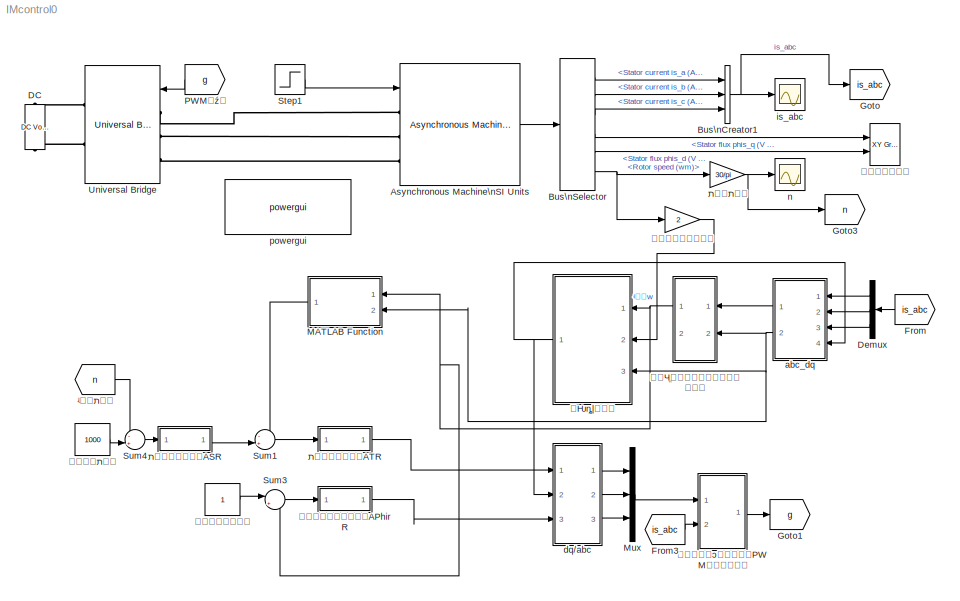
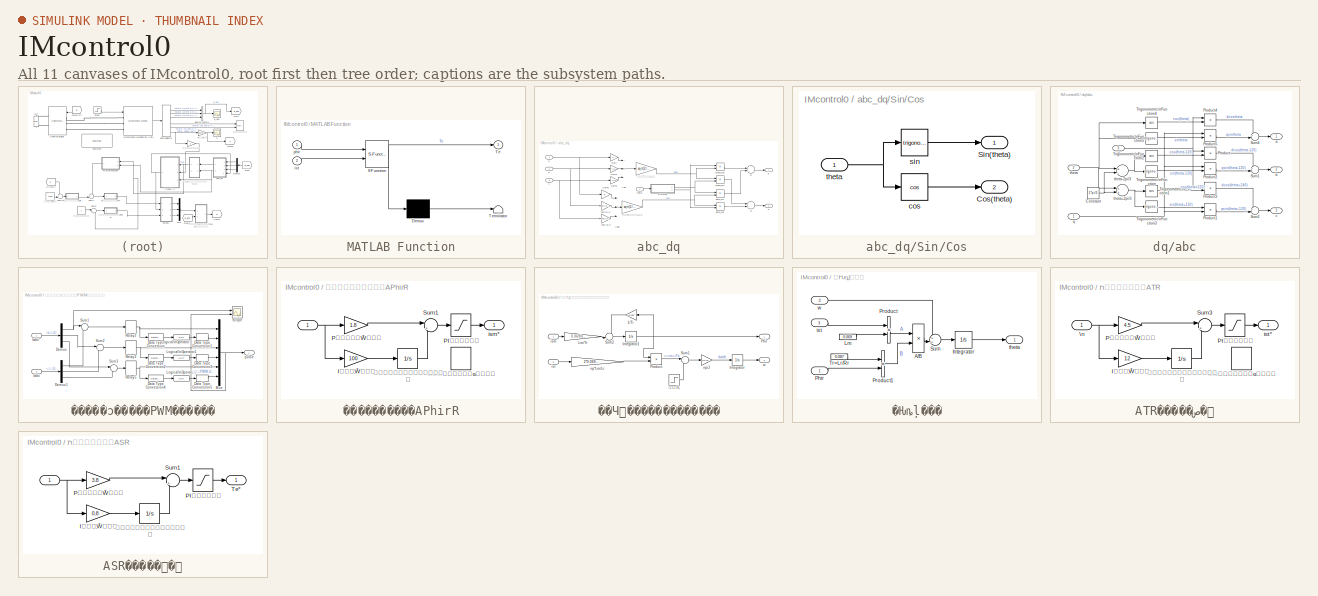
[diagram: thumbnail index - all 11 canvases of the model, root first then tree order]
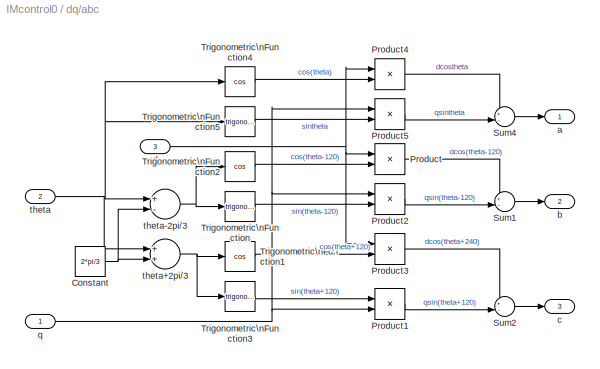
MODEL IMcontrol0
KIND model
BLOCK [Reference] Asynchronous Machine\nSI Units  REF=powerlib/Machines/Asynchronous Machine\nSI Units
  Cage1 = [0.4155 0.002066]
  Cage2 = [0.4168 0.0003495]
  InitialConditions = [1 0 0 0 0 0 0 0]
  IterativeDiscreteModel = Trapezoidal non iterative
  IterativeModel = Trapezoidal non iterative
  Lm = 0.069
  LoadFlowParameters = 1492000
  MeasurementBus = off
  Mechanical = [0.19 0 2]
  MechanicalLoad = Torque Tm
  NominalParameters = [2200 380 50]
  Pmec = 1.492e+006
  PolePairs = 2
  Ports = [1, 1, 0, 0, 0, 3]
  PresetModel = No
  ReferenceFrame = Stationary
  Rotor = [0.816 0.002]
  RotorType = Squirrel-cage
  SID = 46
  Saturation = [14.03593122, 27.81365428, 53.79336849, 72.68890987, 97.98006896, 148.6815601, 215.7428561, 302.9841135, 428.7778367 ; 230, 322, 414, 460, 506, 552, 598, 644, 690]
  ShowDetailedParameters = on
  SimulateSaturation = off
  SourceBlock = powerlib/Machines/Asynchronous Machine\nSI Units
  SourceProductBaseCode = PS
  SourceProductName = Simscape Power Systems
  SourceType = Asynchronous Machine
  Stator = [0.435 0.002]
  TsBlock = -1
  TsPowergui = 0
  Units = SI
BLOCK [BusCreator] Bus\nCreator1
  DisplayOption = bar
  InheritFromInputs = on
  Inputs = 3
  Ports = [3, 1]
  SID = 204
BLOCK [BusSelector] Bus\nSelector
  OutputAsBus = off
  OutputSignals = Stator measurements.Stator current is_a (A),Stator measurements.Stator current is_b (A),Stator measurements.Stator current is_c (A),Stator measurements.Stator flux phis_q (V s),Stator measurements.Stator flux phis_d (V s),Mechanical.Rotor speed (wm)
  Ports = [1, 6]
  SID = 205
BLOCK [Reference] DC  REF=powerlib/Electrical\nSources/DC Voltage Source
  Amplitude = 510
  Measurements = None
  Ports = [0, 0, 0, 0, 0, 1, 1]
  SID = 212
  SourceBlock = powerlib/Electrical\nSources/DC Voltage Source
  SourceProductBaseCode = PS
  SourceProductName = Simscape Power Systems
  SourceType = DC Voltage Source
BLOCK [Demux] Demux
  DisplayOption = bar
  Outputs = 3
  Ports = [1, 3]
  SID = 217
BLOCK [From] From
  GotoTag = is_abc
  SID = 218
BLOCK [From] From3
  GotoTag = is_abc
  SID = 154
BLOCK [Goto] Goto
  GotoTag = is_abc
  SID = 206
BLOCK [Goto] Goto1
  GotoTag = g
  SID = 155
BLOCK [Goto] Goto3
  GotoTag = n
  SID = 207
BLOCK [SubSystem] MATLAB Function
  ErrorFcn = Stateflow.Translate.translate
  PermitHierarchicalResolution = ExplicitOnly
  Ports = [2, 1]
  RequestExecContextInheritance = off
  SFBlockType = MATLAB Function
  SID = 82
  TreatAsAtomicUnit = on
  Variant = off
BLOCK [Demux] MATLAB Function/ Demux 
  Outputs = 1
  Ports = [1, 1]
  SID = 82::20
BLOCK [S-Function] MATLAB Function/ SFunction 
  EnableBusSupport = on
  FunctionName = sf_sfun
  PortCounts = [2 2]
  Ports = [2, 2]
  SFcnIsStateOwnerBlock = off
  SFunctionDeploymentMode = off
  SID = 82::19
  Tag = Stateflow S-Function IMcontrol0 2
BLOCK [Terminator] MATLAB Function/ Terminator 
  SID = 82::21
BLOCK [Outport] MATLAB Function/Te
  IconDisplay = Port number
  SID = 82::5
BLOCK [Inport] MATLAB Function/ist
  IconDisplay = Port number
  Port = 2
  SID = 82::22
BLOCK [Inport] MATLAB Function/phir
  IconDisplay = Port number
  SID = 82::1
BLOCK [Mux] Mux
  DisplayOption = bar
  Inputs = 3
  Ports = [3, 1]
  SID = 156
BLOCK [From] PWMÐÅºÅ
  GotoTag = g
  SID = 213
BLOCK [Step] Step1
  After = 55
  SID = 60
  SampleTime = 0
  Time = 0.6
BLOCK [Sum] Sum1
  IconShape = round
  InputSameDT = off
  Inputs = -+|
  OutDataTypeStr = Inherit: Inherit via internal rule
  Ports = [2, 1]
  SID = 122
  SaturateOnIntegerOverflow = off
BLOCK [Sum] Sum3
  IconShape = round
  InputSameDT = off
  Inputs = |+-
  OutDataTypeStr = Inherit: Inherit via internal rule
  Ports = [2, 1]
  SID = 123
  SaturateOnIntegerOverflow = off
BLOCK [Sum] Sum4
  IconShape = round
  InputSameDT = off
  Inputs = -+|
  OutDataTypeStr = Inherit: Inherit via internal rule
  Ports = [2, 1]
  SID = 124
  SaturateOnIntegerOverflow = off
BLOCK [Reference] Universal Bridge  REF=powerlib/Power\nElectronics/Universal Bridge
  Arms = 3
  Device = IGBT / Diodes
  ForwardVoltage = 0
  ForwardVoltages = [  0  0  ]
  GTOparameters = [ 10e-6 , 20e-6 ]
  IGBTparameters = [ 1e-6 , 2e-6 ]
  Lon = 0
  Measurements = None
  Measurements_2 = None
  Ports = [1, 0, 0, 0, 0, 3, 2]
  Ron = 1e-3
  SID = 214
  SnubberCapacitance = inf
  SnubberResistance = 1e5
  SourceBlock = powerlib/Power\nElectronics/Universal Bridge
  SourceProductBaseCode = PS
  SourceProductName = Simscape Power Systems
  SourceType = Universal Bridge
  converterType = Rectifier
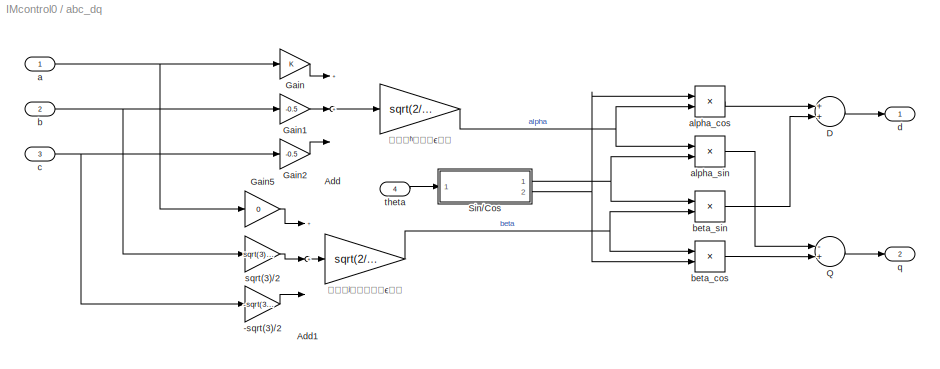
BLOCK [SubSystem] abc_dq
  Ports = [4, 2]
  RequestExecContextInheritance = off
  SID = 17
  Variant = off
BLOCK [Gain] abc_dq/-sqrt(3)//2
  Gain = -sqrt(3)/2
  OutDataTypeStr = Inherit: Inherit via internal rule
  ParamDataTypeStr = Inherit: Inherit via internal rule
  SID = 22
  SaturateOnIntegerOverflow = off
BLOCK [Sum] abc_dq/Add
  InputSameDT = off
  Inputs = 3
  OutDataTypeStr = Inherit: Inherit via internal rule
  Ports = [3, 1]
  SID = 23
  SaturateOnIntegerOverflow = off
BLOCK [Sum] abc_dq/Add1
  InputSameDT = off
  Inputs = 3
  OutDataTypeStr = Inherit: Inherit via internal rule
  Ports = [3, 1]
  SID = 24
  SaturateOnIntegerOverflow = off
BLOCK [Sum] abc_dq/D
  InputSameDT = off
  OutDataTypeStr = Inherit: Inherit via internal rule
  Ports = [2, 1]
  SID = 25
  SaturateOnIntegerOverflow = off
BLOCK [Gain] abc_dq/Gain
  OutDataTypeStr = Inherit: Inherit via internal rule
  ParamDataTypeStr = Inherit: Inherit via internal rule
  SID = 26
  SaturateOnIntegerOverflow = off
BLOCK [Gain] abc_dq/Gain1
  Gain = -0.5
  OutDataTypeStr = Inherit: Inherit via internal rule
  ParamDataTypeStr = Inherit: Inherit via internal rule
  SID = 27
  SaturateOnIntegerOverflow = off
BLOCK [Gain] abc_dq/Gain2
  Gain = -0.5
  OutDataTypeStr = Inherit: Inherit via internal rule
  ParamDataTypeStr = Inherit: Inherit via internal rule
  SID = 28
  SaturateOnIntegerOverflow = off
BLOCK [Gain] abc_dq/Gain5
  Gain = 0
  OutDataTypeStr = Inherit: Inherit via internal rule
  ParamDataTypeStr = Inherit: Inherit via internal rule
  SID = 29
  SaturateOnIntegerOverflow = off
BLOCK [Sum] abc_dq/Q
  InputSameDT = off
  Inputs = -+
  OutDataTypeStr = Inherit: Inherit via internal rule
  Ports = [2, 1]
  SID = 30
  SaturateOnIntegerOverflow = off
BLOCK [SubSystem] abc_dq/Sin//Cos
  Ports = [1, 2]
  RequestExecContextInheritance = off
  SID = 31
  Variant = off
BLOCK [Outport] abc_dq/Sin//Cos/Cos(theta)
  IconDisplay = Port number
  Port = 2
  SID = 36
BLOCK [Outport] abc_dq/Sin//Cos/Sin(theta)
  IconDisplay = Port number
  SID = 35
BLOCK [Trigonometry] abc_dq/Sin//Cos/cos
  Operator = cos
  Ports = [1, 1]
  SID = 33
BLOCK [Trigonometry] abc_dq/Sin//Cos/sin
  Ports = [1, 1]
  SID = 34
BLOCK [Inport] abc_dq/Sin//Cos/theta
  IconDisplay = Port number
  SID = 32
BLOCK [Inport] abc_dq/a
  IconDisplay = Port number
  SID = 18
BLOCK [Product] abc_dq/alpha_cos
  InputSameDT = off
  OutDataTypeStr = Inherit: Inherit via internal rule
  Ports = [2, 1]
  RndMeth = Floor
  SID = 37
  SaturateOnIntegerOverflow = off
BLOCK [Product] abc_dq/alpha_sin
  InputSameDT = off
  OutDataTypeStr = Inherit: Inherit via internal rule
  Ports = [2, 1]
  RndMeth = Floor
  SID = 38
  SaturateOnIntegerOverflow = off
BLOCK [Inport] abc_dq/b
  IconDisplay = Port number
  Port = 2
  SID = 19
BLOCK [Product] abc_dq/beta_cos
  InputSameDT = off
  OutDataTypeStr = Inherit: Inherit via internal rule
  Ports = [2, 1]
  RndMeth = Floor
  SID = 39
  SaturateOnIntegerOverflow = off
BLOCK [Product] abc_dq/beta_sin
  InputSameDT = off
  OutDataTypeStr = Inherit: Inherit via internal rule
  Ports = [2, 1]
  RndMeth = Floor
  SID = 40
  SaturateOnIntegerOverflow = off
BLOCK [Inport] abc_dq/c
  IconDisplay = Port number
  Port = 3
  SID = 20
BLOCK [Outport] abc_dq/d
  IconDisplay = Port number
  SID = 44
BLOCK [Outport] abc_dq/q
  IconDisplay = Port number
  Port = 2
  SID = 45
BLOCK [Gain] abc_dq/sqrt(3)//2
  Gain = sqrt(3)/2
  OutDataTypeStr = Inherit: Inherit via internal rule
  ParamDataTypeStr = Inherit: Inherit via internal rule
  SID = 41
  SaturateOnIntegerOverflow = off
BLOCK [Inport] abc_dq/theta
  IconDisplay = Port number
  Port = 4
  SID = 21
BLOCK [Gain] abc_dq/功率保持系数
  Gain = sqrt(2/3)
  OutDataTypeStr = Inherit: Inherit via internal rule
  ParamDataTypeStr = Inherit: Inherit via internal rule
  SID = 43
  SaturateOnIntegerOverflow = off
BLOCK [Gain] abc_dq/功率不变保持系数
  Gain = sqrt(2/3)
  OutDataTypeStr = Inherit: Inherit via internal rule
  ParamDataTypeStr = Inherit: Inherit via internal rule
  SID = 42
  SaturateOnIntegerOverflow = off
BLOCK [SubSystem] dq//abc
  Ports = [3, 3]
  RequestExecContextInheritance = off
  SID = 157
  Variant = off
BLOCK [Constant] dq//abc/Constant
  SID = 161
  Value = 2*pi/3
BLOCK [Product] dq//abc/Product
  InputSameDT = off
  OutDataTypeStr = Inherit: Inherit via internal rule
  Ports = [2, 1]
  RndMeth = Floor
  SID = 162
  SaturateOnIntegerOverflow = off
BLOCK [Product] dq//abc/Product1
  InputSameDT = off
  OutDataTypeStr = Inherit: Inherit via internal rule
  Ports = [2, 1]
  RndMeth = Floor
  SID = 163
  SaturateOnIntegerOverflow = off
BLOCK [Product] dq//abc/Product2
  InputSameDT = off
  OutDataTypeStr = Inherit: Inherit via internal rule
  Ports = [2, 1]
  RndMeth = Floor
  SID = 164
  SaturateOnIntegerOverflow = off
BLOCK [Product] dq//abc/Product3
  InputSameDT = off
  OutDataTypeStr = Inherit: Inherit via internal rule
  Ports = [2, 1]
  RndMeth = Floor
  SID = 165
  SaturateOnIntegerOverflow = off
BLOCK [Product] dq//abc/Product4
  InputSameDT = off
  OutDataTypeStr = Inherit: Inherit via internal rule
  Ports = [2, 1]
  RndMeth = Floor
  SID = 166
  SaturateOnIntegerOverflow = off
BLOCK [Product] dq//abc/Product5
  InputSameDT = off
  OutDataTypeStr = Inherit: Inherit via internal rule
  Ports = [2, 1]
  RndMeth = Floor
  SID = 167
  SaturateOnIntegerOverflow = off
BLOCK [Sum] dq//abc/Sum1
  IconShape = round
  InputSameDT = off
  Inputs = +-|
  OutDataTypeStr = Inherit: Inherit via internal rule
  Ports = [2, 1]
  SID = 168
  SaturateOnIntegerOverflow = off
BLOCK [Sum] dq//abc/Sum2
  IconShape = round
  InputSameDT = off
  Inputs = +-|
  OutDataTypeStr = Inherit: Inherit via internal rule
  Ports = [2, 1]
  SID = 169
  SaturateOnIntegerOverflow = off
BLOCK [Sum] dq//abc/Sum4
  IconShape = round
  InputSameDT = off
  Inputs = +-|
  OutDataTypeStr = Inherit: Inherit via internal rule
  Ports = [2, 1]
  SID = 170
  SaturateOnIntegerOverflow = off
BLOCK [Trigonometry] dq//abc/Trigonometric\nFunction
  Ports = [1, 1]
  SID = 171
BLOCK [Trigonometry] dq//abc/Trigonometric\nFunction1
  Operator = cos
  Ports = [1, 1]
  SID = 172
BLOCK [Trigonometry] dq//abc/Trigonometric\nFunction2
  Operator = cos
  Ports = [1, 1]
  SID = 173
BLOCK [Trigonometry] dq//abc/Trigonometric\nFunction3
  Ports = [1, 1]
  SID = 174
BLOCK [Trigonometry] dq//abc/Trigonometric\nFunction4
  Operator = cos
  Ports = [1, 1]
  SID = 175
BLOCK [Trigonometry] dq//abc/Trigonometric\nFunction5
  Ports = [1, 1]
  SID = 176
BLOCK [Outport] dq//abc/a
  IconDisplay = Port number
  SID = 179
BLOCK [Outport] dq//abc/b
  IconDisplay = Port number
  Port = 2
  SID = 180
BLOCK [Outport] dq//abc/c
  IconDisplay = Port number
  Port = 3
  SID = 181
BLOCK [Inport] dq//abc/d
  IconDisplay = Port number
  Port = 3
  SID = 160
BLOCK [Inport] dq//abc/q
  IconDisplay = Port number
  SID = 158
BLOCK [Inport] dq//abc/theta
  IconDisplay = Port number
  Port = 2
  SID = 159
BLOCK [Sum] dq//abc/theta+2pi//3
  InputSameDT = off
  OutDataTypeStr = Inherit: Inherit via internal rule
  Ports = [2, 1]
  SID = 177
  SaturateOnIntegerOverflow = off
BLOCK [Sum] dq//abc/theta-2pi//3
  InputSameDT = off
  Inputs = +-
  OutDataTypeStr = Inherit: Inherit via internal rule
  Ports = [2, 1]
  SID = 178
  SaturateOnIntegerOverflow = off
BLOCK [Scope] is_abc
  NumInputPorts = 1
  Ports = [1]
  SID = 208
  ScopeSpecificationString = Simulink.scopes.TimeScopeBlockCfg('CurrentConfiguration', extmgr.ConfigurationSet(extmgr.Configuration('Core','General UI',true),extmgr.Configuration('Core','Source UI',true),extmgr.Configuration('Sources','WiredSimulink',true,'DataLoggingVariableName','ScopeData1'),extmgr.Configuration('Visuals','Time Domain',true,'SerializedDisplays',{struct('MinYLimReal','-77.19583','MaxYLimReal','77.10857','YL...<+1513ch>
BLOCK [Scope] n
  NumInputPorts = 1
  Ports = [1]
  SID = 209
  ScopeSpecificationString = Simulink.scopes.TimeScopeBlockCfg('CurrentConfiguration', extmgr.ConfigurationSet(extmgr.Configuration('Core','General UI',true),extmgr.Configuration('Core','Source UI',true),extmgr.Configuration('Sources','WiredSimulink',true),extmgr.Configuration('Visuals','Time Domain',true,'SerializedDisplays',{struct('MinYLimReal','-127.89091','MaxYLimReal','1151.0182','YLabelReal','','MinYLimMag',' 0.00000',...<+1413ch>
BLOCK [Reference] powergui  REF=powerlib/powergui
  CurrentSourceSwitches = off
  DisableRonSwitches = off
  DisableSnubberDevices = off
  DisableVfSwitches = off
  DisplayEquations = off
  DisplayStyle = 1
  EnableUseOfTLC = off
  ErrMax = 1e-4
  ExternalGateDelay = off
  Frange = [0:2:500]
  FreqAxis = off
  FunctionMessages = off
  HookPort = off
  Interpol = off
  Iterations = 50
  MaxFrequency = 1000
  Pbase = 100e6
  Ports = []
  ResistiveCurrentMeasurement = off
  RestoreLinks = warning
  RmsSteady = 1
  SID = 216
  SPID = on
  SampleTime = 0.00001
  ShowGrid = off
  SolverType = Tustin/Backward Euler (TBE)
  SourceBlock = powerlib/powergui
  SourceProductBaseCode = PS
  SourceProductName = Simscape Power Systems
  SourceType = PSB option menu block
  StartTime = 0.0
  SwTol = 0
  Ts = 100
  UnitsV = kV
  UnitsW = MW
  Xlog = on
  Ylog = off
  ZoomFFT = on
  buscounter = 0
  cycles = 1
  display = off
  echomessages = off
  frequency = 50
  frequencyindice = 50
  frequencyindicesteady = 1
  fundamental = 60
  methode = off
  save = off
  structure = 0
  variable = ZData
  x0status = zero
BLOCK [SubSystem] 磁链调节器APhirR
  Ports = [1, 1]
  RequestExecContextInheritance = off
  SID = 126
  Variant = off
BLOCK [Inport] 磁链调节器APhirR/ 
  IconDisplay = Port number
  SID = 127
BLOCK [Gain] 磁链调节器APhirR/I积分放大倍数
  Gain = 100
  OutDataTypeStr = Inherit: Inherit via internal rule
  ParamDataTypeStr = Inherit: Inherit via internal rule
  SID = 128
  SaturateOnIntegerOverflow = off
BLOCK [Saturate] 磁链调节器APhirR/PI输出限幅
  InputPortMap = u0
  LowerLimit = -13
  Ports = [1, 1]
  SID = 129
  UpperLimit = 13
BLOCK [Gain] 磁链调节器APhirR/P比例放大倍数
  Gain = 1.8
  OutDataTypeStr = Inherit: Inherit via internal rule
  ParamDataTypeStr = Inherit: Inherit via internal rule
  SID = 130
  SaturateOnIntegerOverflow = off
BLOCK [Sum] 磁链调节器APhirR/Sum1
  IconShape = round
  InputSameDT = off
  Inputs = |++
  OutDataTypeStr = Inherit: Inherit via internal rule
  Ports = [2, 1]
  SID = 131
  SaturateOnIntegerOverflow = off
BLOCK [Outport] 磁链调节器APhirR/ism*
  IconDisplay = Port number
  SID = 134
BLOCK [DiscreteIntegrator] 磁链调节器APhirR/带限幅的离散积分
  ICPrevOutput = DiscIntNeverNeededParam
  ICPrevScaledInput = DiscIntNeverNeededParam
  Ports = [1, 1]
  SID = 132
  SampleTime = 2e-5
BLOCK [Integrator] 磁链调节器APhirR/带限幅的连续积分
  LimitOutput = on
  LowerSaturationLimit = -15
  Ports = [1, 1]
  SID = 133
  UpperSaturationLimit = 15
BLOCK [Reference] 磁链观测  REF=simulink/Sinks/XY Graph
  Ports = [2]
  SID = 210
  SourceBlock = simulink/Sinks/XY Graph
  SourceProductBaseCode = SL
  SourceProductName = Simulink
  SourceType = XY scope.
  st = -1
  xmax = 1
  xmin = -1
  ymax = 1
  ymin = -1
BLOCK [SubSystem] 等效直流电机参数计算
  Ports = [2, 2]
  RequestExecContextInheritance = off
  SID = 115
  Variant = off
BLOCK [Gain] 等效直流电机参数计算/1//Tr
  Gain = 1/0.087
  OutDataTypeStr = Inherit: Inherit via internal rule
  ParamDataTypeStr = Inherit: Inherit via internal rule
  SID = 87
  SaturateOnIntegerOverflow = off
BLOCK [Integrator] 等效直流电机参数计算/Integrator
  Ports = [1, 1]
  SID = 88
BLOCK [Integrator] 等效直流电机参数计算/Integrator1
  InitialCondition = 1e-5
  Ports = [1, 1]
  SID = 114
BLOCK [Gain] 等效直流电机参数计算/Lm//Tr
  Gain = 0.069/0.087
  OutDataTypeStr = Inherit: Inherit via internal rule
  ParamDataTypeStr = Inherit: Inherit via internal rule
  SID = 89
  SaturateOnIntegerOverflow = off
BLOCK [Outport] 等效直流电机参数计算/Phir
  IconDisplay = Port number
  SID = 118
BLOCK [Product] 等效直流电机参数计算/Product
  InputSameDT = off
  OutDataTypeStr = Inherit: Inherit via internal rule
  Ports = [2, 1]
  RndMeth = Floor
  SID = 90
  SaturateOnIntegerOverflow = off
BLOCK [Sum] 等效直流电机参数计算/Sum1
  IconShape = round
  InputSameDT = off
  Inputs = |+-
  OutDataTypeStr = Inherit: Inherit via internal rule
  Ports = [2, 1]
  SID = 92
  SaturateOnIntegerOverflow = off
BLOCK [Sum] 等效直流电机参数计算/Sum2
  IconShape = round
  InputSameDT = off
  Inputs = -+|
  OutDataTypeStr = Inherit: Inherit via internal rule
  Ports = [2, 1]
  SID = 113
  SaturateOnIntegerOverflow = off
BLOCK [Inport] 等效直流电机参数计算/ism
  IconDisplay = Port number
  SID = 116
BLOCK [Inport] 等效直流电机参数计算/ist
  IconDisplay = Port number
  Port = 2
  SID = 117
BLOCK [Gain] 等效直流电机参数计算/np*Lm//Lr
  Gain = 2*0.069/0.071
  OutDataTypeStr = Inherit: Inherit via internal rule
  ParamDataTypeStr = Inherit: Inherit via internal rule
  SID = 93
  SaturateOnIntegerOverflow = off
BLOCK [Gain] 等效直流电机参数计算/np//J
  Gain = 2/0.19
  OutDataTypeStr = Inherit: Inherit via internal rule
  ParamDataTypeStr = Inherit: Inherit via internal rule
  SID = 94
  SaturateOnIntegerOverflow = off
BLOCK [Outport] 等效直流电机参数计算/w
  IconDisplay = Port number
  Port = 2
  SID = 119
BLOCK [Step] 等效直流电机参数计算/¸ºÔØTL
  After = 55
  SID = 96
  SampleTime = 0
  Time = 0.6
BLOCK [SubSystem] 电流滞环跟踪PWM发生器
  Ports = [2, 1]
  RequestExecContextInheritance = off
  SID = 182
  Variant = off
BLOCK [DataTypeConversion] 电流滞环跟踪PWM发生器/Data Type Conversion
  RndMeth = Floor
  SID = 185
  SaturateOnIntegerOverflow = off
BLOCK [DataTypeConversion] 电流滞环跟踪PWM发生器/Data Type Conversion1
  RndMeth = Floor
  SID = 186
  SaturateOnIntegerOverflow = off
BLOCK [DataTypeConversion] 电流滞环跟踪PWM发生器/Data Type Conversion2
  RndMeth = Floor
  SID = 187
  SaturateOnIntegerOverflow = off
BLOCK [DataTypeConversion] 电流滞环跟踪PWM发生器/Data Type Conversion3
  RndMeth = Floor
  SID = 188
  SaturateOnIntegerOverflow = off
BLOCK [DataTypeConversion] 电流滞环跟踪PWM发生器/Data Type Conversion4
  RndMeth = Floor
  SID = 189
  SaturateOnIntegerOverflow = off
BLOCK [DataTypeConversion] 电流滞环跟踪PWM发生器/Data Type Conversion5
  RndMeth = Floor
  SID = 190
  SaturateOnIntegerOverflow = off
BLOCK [Demux] 电流滞环跟踪PWM发生器/Demux
  DisplayOption = bar
  Outputs = 3
  Ports = [1, 3]
  SID = 191
BLOCK [Demux] 电流滞环跟踪PWM发生器/Demux1
  DisplayOption = bar
  Outputs = 3
  Ports = [1, 3]
  SID = 192
BLOCK [Inport] 电流滞环跟踪PWM发生器/Iabc
  IconDisplay = Port number
  Port = 2
  SID = 184
BLOCK [Inport] 电流滞环跟踪PWM发生器/Iabc*
  IconDisplay = Port number
  SID = 183
BLOCK [Logic] 电流滞环跟踪PWM发生器/Logical\nOperator
  AllPortsSameDT = off
  Inputs = 1
  Operator = NOT
  Ports = [1, 1]
  SID = 193
BLOCK [Logic] 电流滞环跟踪PWM发生器/Logical\nOperator1
  AllPortsSameDT = off
  Inputs = 1
  Operator = NOT
  Ports = [1, 1]
  SID = 194
BLOCK [Logic] 电流滞环跟踪PWM发生器/Logical\nOperator2
  AllPortsSameDT = off
  Inputs = 1
  Operator = NOT
  Ports = [1, 1]
  SID = 195
BLOCK [Mux] 电流滞环跟踪PWM发生器/Mux
  DisplayOption = bar
  Inputs = 6
  Ports = [6, 1]
  SID = 196
BLOCK [Relay] 电流滞环跟踪PWM发生器/Relay2
  OffSwitchValue = -0.2
  OnSwitchValue = 0.2
  SID = 197
  ZeroCross = off
BLOCK [Relay] 电流滞环跟踪PWM发生器/Relay3
  OffSwitchValue = -0.2
  OnSwitchValue = 0.2
  SID = 198
  ZeroCross = off
BLOCK [Relay] 电流滞环跟踪PWM发生器/Relay5
  OffSwitchValue = -0.2
  OnSwitchValue = 0.2
  SID = 199
  ZeroCross = off
BLOCK [Scope] 电流滞环跟踪PWM发生器/Scope
  NumInputPorts = 2
  Ports = [2]
  SID = 223
  ScopeSpecificationString = Simulink.scopes.TimeScopeBlockCfg('CurrentConfiguration', extmgr.ConfigurationSet(extmgr.Configuration('Core','General UI',true),extmgr.Configuration('Core','Source UI',true),extmgr.Configuration('Sources','WiredSimulink',true,'DataLoggingVariableName','ScopeData1'),extmgr.Configuration('Visuals','Time Domain',true,'SerializedDisplays',{struct('MinYLimReal','-10','MaxYLimReal','10','YLabelReal',''...<+1317ch>
BLOCK [Sum] 电流滞环跟踪PWM发生器/Sum1
  IconShape = round
  InputSameDT = off
  Inputs = |+-
  OutDataTypeStr = Inherit: Inherit via internal rule
  Ports = [2, 1]
  SID = 200
  SaturateOnIntegerOverflow = off
BLOCK [Sum] 电流滞环跟踪PWM发生器/Sum2
  IconShape = round
  InputSameDT = off
  Inputs = |+-
  OutDataTypeStr = Inherit: Inherit via internal rule
  Ports = [2, 1]
  SID = 201
  SaturateOnIntegerOverflow = off
BLOCK [Sum] 电流滞环跟踪PWM发生器/Sum3
  IconShape = round
  InputSameDT = off
  Inputs = |+-
  OutDataTypeStr = Inherit: Inherit via internal rule
  Ports = [2, 1]
  SID = 202
  SaturateOnIntegerOverflow = off
BLOCK [Outport] 电流滞环跟踪PWM发生器/pulse
  IconDisplay = Port number
  SID = 203
BLOCK [Gain] 电气角速度
  Gain = 2
  OutDataTypeStr = Inherit: Inherit via internal rule
  ParamDataTypeStr = Inherit: Inherit via internal rule
  SID = 221
  SaturateOnIntegerOverflow = off
BLOCK [Constant] 给定磁链
  SID = 135
BLOCK [Constant] 给定转速
  SID = 136
  Value = 1000
BLOCK [SubSystem] 角度的计算
  Ports = [3, 1]
  RequestExecContextInheritance = off
  SID = 77
  Variant = off
BLOCK [Product] 角度的计算/A//B
  InputSameDT = off
  Inputs = */
  OutDataTypeStr = Inherit: Inherit via internal rule
  Ports = [2, 1]
  RndMeth = Floor
  SID = 74
  SaturateOnIntegerOverflow = off
BLOCK [Integrator] 角度的计算/Integrator
  Ports = [1, 1]
  SID = 76
BLOCK [Constant] 角度的计算/Lm
  SID = 70
  Value = 0.069
BLOCK [Inport] 角度的计算/Phir
  IconDisplay = Port number
  SID = 80
BLOCK [Product] 角度的计算/Product
  InputSameDT = off
  OutDataTypeStr = Inherit: Inherit via internal rule
  Ports = [2, 1]
  RndMeth = Floor
  SID = 73
  SaturateOnIntegerOverflow = off
BLOCK [Product] 角度的计算/Product1
  InputSameDT = off
  OutDataTypeStr = Inherit: Inherit via internal rule
  Ports = [2, 1]
  RndMeth = Floor
  SID = 75
  SaturateOnIntegerOverflow = off
BLOCK [Sum] 角度的计算/Sum
  IconShape = round
  InputSameDT = off
  Inputs = ++|
  OutDataTypeStr = Inherit: Inherit via internal rule
  Ports = [2, 1]
  SID = 72
  SaturateOnIntegerOverflow = off
BLOCK [Constant] 角度的计算/Tr=Lr//Rr
  SID = 71
  Value = 0.087
BLOCK [Inport] 角度的计算/ist
  IconDisplay = Port number
  Port = 3
  SID = 79
BLOCK [Outport] 角度的计算/theta
  IconDisplay = Port number
  SID = 81
BLOCK [Inport] 角度的计算/w
  IconDisplay = Port number
  Port = 2
  SID = 78
BLOCK [From] 实际转速
  GotoTag = n
  SID = 125
BLOCK [SubSystem] 转矩调节器ATR
  Ports = [1, 1]
  RequestExecContextInheritance = off
  SID = 137
  Variant = off
BLOCK [Gain] 转矩调节器ATR/I积分放大倍数
  Gain = 12
  OutDataTypeStr = Inherit: Inherit via internal rule
  ParamDataTypeStr = Inherit: Inherit via internal rule
  SID = 139
  SaturateOnIntegerOverflow = off
BLOCK [Saturate] 转矩调节器ATR/PI输出限幅
  InputPortMap = u0
  LowerLimit = -60
  Ports = [1, 1]
  SID = 140
  UpperLimit = 60
BLOCK [Gain] 转矩调节器ATR/P比例放大倍数
  Gain = 4.5
  OutDataTypeStr = Inherit: Inherit via internal rule
  ParamDataTypeStr = Inherit: Inherit via internal rule
  SID = 141
  SaturateOnIntegerOverflow = off
BLOCK [Sum] 转矩调节器ATR/Sum3
  IconShape = round
  InputSameDT = off
  Inputs = |++
  OutDataTypeStr = Inherit: Inherit via internal rule
  Ports = [2, 1]
  SID = 142
  SaturateOnIntegerOverflow = off
BLOCK [Inport] 转矩调节器ATR/\n
  IconDisplay = Port number
  SID = 138
BLOCK [Outport] 转矩调节器ATR/ist*
  IconDisplay = Port number
  SID = 145
BLOCK [DiscreteIntegrator] 转矩调节器ATR/带限幅的离散积分
  ICPrevOutput = DiscIntNeverNeededParam
  ICPrevScaledInput = DiscIntNeverNeededParam
  Ports = [1, 1]
  SID = 143
  SampleTime = 2e-5
BLOCK [Integrator] 转矩调节器ATR/带限幅的连续积分
  LimitOutput = on
  LowerSaturationLimit = -65
  Ports = [1, 1]
  SID = 144
  UpperSaturationLimit = 65
BLOCK [SubSystem] 转速调节器ASR
  Ports = [1, 1]
  RequestExecContextInheritance = off
  SID = 146
  Variant = off
BLOCK [Inport] 转速调节器ASR/  
  IconDisplay = Port number
  SID = 147
BLOCK [Gain] 转速调节器ASR/I积分放大倍数
  Gain = 0.8
  OutDataTypeStr = Inherit: Inherit via internal rule
  ParamDataTypeStr = Inherit: Inherit via internal rule
  SID = 148
  SaturateOnIntegerOverflow = off
BLOCK [Saturate] 转速调节器ASR/PI输出限幅
  InputPortMap = u0
  LowerLimit = -75
  Ports = [1, 1]
  SID = 149
  UpperLimit = 75
BLOCK [Gain] 转速调节器ASR/P比例放大倍数
  Gain = 3.8
  OutDataTypeStr = Inherit: Inherit via internal rule
  ParamDataTypeStr = Inherit: Inherit via internal rule
  SID = 150
  SaturateOnIntegerOverflow = off
BLOCK [Sum] 转速调节器ASR/Sum1
  IconShape = round
  InputSameDT = off
  Inputs = |++
  OutDataTypeStr = Inherit: Inherit via internal rule
  Ports = [2, 1]
  SID = 151
  SaturateOnIntegerOverflow = off
BLOCK [Outport] 转速调节器ASR/Te*
  IconDisplay = Port number
  SID = 153
BLOCK [Integrator] 转速调节器ASR/带限幅的连续积分
  LimitOutput = on
  LowerSaturationLimit = -80
  Ports = [1, 1]
  SID = 152
  UpperSaturationLimit = 80
BLOCK [Gain] 转速转换
  Gain = 30/pi
  OutDataTypeStr = Inherit: Inherit via internal rule
  ParamDataTypeStr = Inherit: Inherit via internal rule
  SID = 211
  SaturateOnIntegerOverflow = off
LINE Asynchronous Machine\nSI Units:1 -> Bus\nSelector:1
NET Bus\nCreator1:1 -> Goto:1, is_abc:1
LINE Bus\nSelector:1 -> Bus\nCreator1:1
LINE Bus\nSelector:2 -> Bus\nCreator1:2
LINE Bus\nSelector:3 -> Bus\nCreator1:3
LINE Bus\nSelector:4 -> 磁链观测:1
LINE Bus\nSelector:5 -> 磁链观测:2
NET Bus\nSelector:6 -> 电气角速度:1, 转速转换:1
LINE Demux:1 -> abc_dq:1
LINE Demux:2 -> abc_dq:2
LINE Demux:3 -> abc_dq:3
LINE From3:1 -> 电流滞环跟踪PWM发生器:2
LINE From:1 -> Demux:1
LINE MATLAB Function/ Demux :1 -> MATLAB Function/ Terminator :1
LINE MATLAB Function/ SFunction :1 -> MATLAB Function/ Demux :1
LINE MATLAB Function/ SFunction :2 -> MATLAB Function/Te:1
LINE MATLAB Function/ist:1 -> MATLAB Function/ SFunction :2
LINE MATLAB Function/phir:1 -> MATLAB Function/ SFunction :1
LINE MATLAB Function:1 -> Sum1:1
LINE Mux:1 -> 电流滞环跟踪PWM发生器:1
LINE PWMÐÅºÅ:1 -> Universal Bridge:1
LINE Step1:1 -> Asynchronous Machine\nSI Units:1
LINE Sum1:1 -> 转矩调节器ATR:1
LINE Sum3:1 -> 磁链调节器APhirR:1
LINE Sum4:1 -> 转速调节器ASR:1
LINE abc_dq/-sqrt(3)//2:1 -> abc_dq/Add1:3
LINE abc_dq/Add1:1 -> abc_dq/功率不变保持系数:1
LINE abc_dq/Add:1 -> abc_dq/功率保持系数:1
LINE abc_dq/D:1 -> abc_dq/d:1
LINE abc_dq/Gain1:1 -> abc_dq/Add:2
LINE abc_dq/Gain2:1 -> abc_dq/Add:3
LINE abc_dq/Gain5:1 -> abc_dq/Add1:1
LINE abc_dq/Gain:1 -> abc_dq/Add:1
LINE abc_dq/Q:1 -> abc_dq/q:1
LINE abc_dq/Sin//Cos/cos:1 -> abc_dq/Sin//Cos/Cos(theta):1
LINE abc_dq/Sin//Cos/sin:1 -> abc_dq/Sin//Cos/Sin(theta):1
NET abc_dq/Sin//Cos/theta:1 -> abc_dq/Sin//Cos/cos:1, abc_dq/Sin//Cos/sin:1
NET abc_dq/Sin//Cos:1 -> abc_dq/alpha_sin:2, abc_dq/beta_sin:1
NET abc_dq/Sin//Cos:2 -> abc_dq/alpha_cos:1, abc_dq/beta_cos:2
NET abc_dq/a:1 -> abc_dq/Gain5:1, abc_dq/Gain:1
LINE abc_dq/alpha_cos:1 -> abc_dq/D:1
LINE abc_dq/alpha_sin:1 -> abc_dq/Q:1
NET abc_dq/b:1 -> abc_dq/Gain1:1, abc_dq/sqrt(3)//2:1
LINE abc_dq/beta_cos:1 -> abc_dq/Q:2
LINE abc_dq/beta_sin:1 -> abc_dq/D:2
NET abc_dq/c:1 -> abc_dq/-sqrt(3)//2:1, abc_dq/Gain2:1
LINE abc_dq/sqrt(3)//2:1 -> abc_dq/Add1:2
LINE abc_dq/theta:1 -> abc_dq/Sin//Cos:1
NET abc_dq/功率保持系数:1 -> abc_dq/alpha_cos:2, abc_dq/alpha_sin:1
NET abc_dq/功率不变保持系数:1 -> abc_dq/beta_cos:1, abc_dq/beta_sin:2
LINE abc_dq:1 -> 等效直流电机参数计算:1
NET abc_dq:2 -> MATLAB Function:2, 等效直流电机参数计算:2, 角度的计算:3
NET dq//abc/Constant:1 -> dq//abc/theta+2pi//3:2, dq//abc/theta-2pi//3:2
LINE dq//abc/Product1:1 -> dq//abc/Sum2:2
LINE dq//abc/Product2:1 -> dq//abc/Sum1:2
LINE dq//abc/Product3:1 -> dq//abc/Sum2:1
LINE dq//abc/Product4:1 -> dq//abc/Sum4:1
LINE dq//abc/Product5:1 -> dq//abc/Sum4:2
LINE dq//abc/Product:1 -> dq//abc/Sum1:1
LINE dq//abc/Sum1:1 -> dq//abc/b:1
LINE dq//abc/Sum2:1 -> dq//abc/c:1
LINE dq//abc/Sum4:1 -> dq//abc/a:1
LINE dq//abc/Trigonometric\nFunction1:1 -> dq//abc/Product3:2
LINE dq//abc/Trigonometric\nFunction2:1 -> dq//abc/Product:2
LINE dq//abc/Trigonometric\nFunction3:1 -> dq//abc/Product1:1
LINE dq//abc/Trigonometric\nFunction4:1 -> dq//abc/Product4:2
LINE dq//abc/Trigonometric\nFunction5:1 -> dq//abc/Product5:2
LINE dq//abc/Trigonometric\nFunction:1 -> dq//abc/Product2:2
NET dq//abc/d:1 -> dq//abc/Product3:1, dq//abc/Product4:1, dq//abc/Product:1
NET dq//abc/q:1 -> dq//abc/Product1:2, dq//abc/Product2:1, dq//abc/Product5:1
NET dq//abc/theta+2pi//3:1 -> dq//abc/Trigonometric\nFunction1:1, dq//abc/Trigonometric\nFunction3:1
NET dq//abc/theta-2pi//3:1 -> dq//abc/Trigonometric\nFunction2:1, dq//abc/Trigonometric\nFunction:1
NET dq//abc/theta:1 -> dq//abc/Trigonometric\nFunction4:1, dq//abc/Trigonometric\nFunction5:1, dq//abc/theta+2pi//3:1, dq//abc/theta-2pi//3:1
LINE dq//abc:1 -> Mux:1
LINE dq//abc:2 -> Mux:2
LINE dq//abc:3 -> Mux:3
NET 磁链调节器APhirR/ :1 -> 磁链调节器APhirR/I积分放大倍数:1, 磁链调节器APhirR/P比例放大倍数:1
LINE 磁链调节器APhirR/I积分放大倍数:1 -> 磁链调节器APhirR/带限幅的连续积分:1
LINE 磁链调节器APhirR/PI输出限幅:1 -> 磁链调节器APhirR/ism*:1
LINE 磁链调节器APhirR/P比例放大倍数:1 -> 磁链调节器APhirR/Sum1:1
LINE 磁链调节器APhirR/Sum1:1 -> 磁链调节器APhirR/PI输出限幅:1
LINE 磁链调节器APhirR/带限幅的连续积分:1 -> 磁链调节器APhirR/Sum1:2
LINE 磁链调节器APhirR:1 -> dq//abc:3
LINE 等效直流电机参数计算/1//Tr:1 -> 等效直流电机参数计算/Sum2:1
NET 等效直流电机参数计算/Integrator1:1 -> 等效直流电机参数计算/1//Tr:1, 等效直流电机参数计算/Phir:1, 等效直流电机参数计算/Product:1
LINE 等效直流电机参数计算/Integrator:1 -> 等效直流电机参数计算/w:1
LINE 等效直流电机参数计算/Lm//Tr:1 -> 等效直流电机参数计算/Sum2:2
LINE 等效直流电机参数计算/Product:1 -> 等效直流电机参数计算/Sum1:1
LINE 等效直流电机参数计算/Sum1:1 -> 等效直流电机参数计算/np//J:1
LINE 等效直流电机参数计算/Sum2:1 -> 等效直流电机参数计算/Integrator1:1
LINE 等效直流电机参数计算/ism:1 -> 等效直流电机参数计算/Lm//Tr:1
LINE 等效直流电机参数计算/ist:1 -> 等效直流电机参数计算/np*Lm//Lr:1
LINE 等效直流电机参数计算/np*Lm//Lr:1 -> 等效直流电机参数计算/Product:2
LINE 等效直流电机参数计算/np//J:1 -> 等效直流电机参数计算/Integrator:1
LINE 等效直流电机参数计算/¸ºÔØTL:1 -> 等效直流电机参数计算/Sum1:2
NET 等效直流电机参数计算:1 -> MATLAB Function:1, Sum3:2, 角度的计算:1
LINE 电流滞环跟踪PWM发生器/Data Type Conversion1:1 -> 电流滞环跟踪PWM发生器/Mux:2
LINE 电流滞环跟踪PWM发生器/Data Type Conversion2:1 -> 电流滞环跟踪PWM发生器/Logical\nOperator1:1
LINE 电流滞环跟踪PWM发生器/Data Type Conversion3:1 -> 电流滞环跟踪PWM发生器/Mux:4
LINE 电流滞环跟踪PWM发生器/Data Type Conversion4:1 -> 电流滞环跟踪PWM发生器/Logical\nOperator2:1
LINE 电流滞环跟踪PWM发生器/Data Type Conversion5:1 -> 电流滞环跟踪PWM发生器/Mux:6
LINE 电流滞环跟踪PWM发生器/Data Type Conversion:1 -> 电流滞环跟踪PWM发生器/Logical\nOperator:1
LINE 电流滞环跟踪PWM发生器/Demux1:1 -> 电流滞环跟踪PWM发生器/Sum1:2
LINE 电流滞环跟踪PWM发生器/Demux1:2 -> 电流滞环跟踪PWM发生器/Sum2:2
LINE 电流滞环跟踪PWM发生器/Demux1:3 -> 电流滞环跟踪PWM发生器/Sum3:2
NET 电流滞环跟踪PWM发生器/Demux:1 -> 电流滞环跟踪PWM发生器/Scope:1, 电流滞环跟踪PWM发生器/Sum1:1
LINE 电流滞环跟踪PWM发生器/Demux:2 -> 电流滞环跟踪PWM发生器/Sum2:1
LINE 电流滞环跟踪PWM发生器/Demux:3 -> 电流滞环跟踪PWM发生器/Sum3:1
LINE 电流滞环跟踪PWM发生器/Iabc*:1 -> 电流滞环跟踪PWM发生器/Demux:1
LINE 电流滞环跟踪PWM发生器/Iabc:1 -> 电流滞环跟踪PWM发生器/Demux1:1
LINE 电流滞环跟踪PWM发生器/Logical\nOperator1:1 -> 电流滞环跟踪PWM发生器/Data Type Conversion3:1
LINE 电流滞环跟踪PWM发生器/Logical\nOperator2:1 -> 电流滞环跟踪PWM发生器/Data Type Conversion5:1
LINE 电流滞环跟踪PWM发生器/Logical\nOperator:1 -> 电流滞环跟踪PWM发生器/Data Type Conversion1:1
NET 电流滞环跟踪PWM发生器/Mux:1 -> 电流滞环跟踪PWM发生器/Scope:2, 电流滞环跟踪PWM发生器/pulse:1
NET 电流滞环跟踪PWM发生器/Relay2:1 -> 电流滞环跟踪PWM发生器/Data Type Conversion:1, 电流滞环跟踪PWM发生器/Mux:1
NET 电流滞环跟踪PWM发生器/Relay3:1 -> 电流滞环跟踪PWM发生器/Data Type Conversion2:1, 电流滞环跟踪PWM发生器/Mux:3
NET 电流滞环跟踪PWM发生器/Relay5:1 -> 电流滞环跟踪PWM发生器/Data Type Conversion4:1, 电流滞环跟踪PWM发生器/Mux:5
LINE 电流滞环跟踪PWM发生器/Sum1:1 -> 电流滞环跟踪PWM发生器/Relay2:1
LINE 电流滞环跟踪PWM发生器/Sum2:1 -> 电流滞环跟踪PWM发生器/Relay3:1
LINE 电流滞环跟踪PWM发生器/Sum3:1 -> 电流滞环跟踪PWM发生器/Relay5:1
LINE 电流滞环跟踪PWM发生器:1 -> Goto1:1
LINE 电气角速度:1 -> 角度的计算:2
LINE 给定磁链:1 -> Sum3:1
LINE 给定转速:1 -> Sum4:2
LINE 角度的计算/A//B:1 -> 角度的计算/Sum:2
LINE 角度的计算/Integrator:1 -> 角度的计算/theta:1
LINE 角度的计算/Lm:1 -> 角度的计算/Product:2
LINE 角度的计算/Phir:1 -> 角度的计算/Product1:2
LINE 角度的计算/Product1:1 -> 角度的计算/A//B:2
LINE 角度的计算/Product:1 -> 角度的计算/A//B:1
LINE 角度的计算/Sum:1 -> 角度的计算/Integrator:1
LINE 角度的计算/Tr=Lr//Rr:1 -> 角度的计算/Product1:1
LINE 角度的计算/ist:1 -> 角度的计算/Product:1
LINE 角度的计算/w:1 -> 角度的计算/Sum:1
NET 角度的计算:1 -> abc_dq:4, dq//abc:2
LINE 实际转速:1 -> Sum4:1
LINE 转矩调节器ATR/I积分放大倍数:1 -> 转矩调节器ATR/带限幅的连续积分:1
LINE 转矩调节器ATR/PI输出限幅:1 -> 转矩调节器ATR/ist*:1
LINE 转矩调节器ATR/P比例放大倍数:1 -> 转矩调节器ATR/Sum3:1
LINE 转矩调节器ATR/Sum3:1 -> 转矩调节器ATR/PI输出限幅:1
NET 转矩调节器ATR/\n:1 -> 转矩调节器ATR/I积分放大倍数:1, 转矩调节器ATR/P比例放大倍数:1
LINE 转矩调节器ATR/带限幅的连续积分:1 -> 转矩调节器ATR/Sum3:2
LINE 转矩调节器ATR:1 -> dq//abc:1
NET 转速调节器ASR/  :1 -> 转速调节器ASR/I积分放大倍数:1, 转速调节器ASR/P比例放大倍数:1
LINE 转速调节器ASR/I积分放大倍数:1 -> 转速调节器ASR/带限幅的连续积分:1
LINE 转速调节器ASR/PI输出限幅:1 -> 转速调节器ASR/Te*:1
LINE 转速调节器ASR/P比例放大倍数:1 -> 转速调节器ASR/Sum1:1
LINE 转速调节器ASR/Sum1:1 -> 转速调节器ASR/PI输出限幅:1
LINE 转速调节器ASR/带限幅的连续积分:1 -> 转速调节器ASR/Sum1:2
LINE 转速调节器ASR:1 -> Sum1:2
NET 转速转换:1 -> Goto3:1, n:1
PLINE Asynchronous Machine\nSI Units:LConn1 -- Universal Bridge:LConn1
PLINE Asynchronous Machine\nSI Units:LConn2 -- Universal Bridge:LConn2
PLINE Asynchronous Machine\nSI Units:LConn3 -- Universal Bridge:LConn3
PLINE DC:LConn1 -- Universal Bridge:RConn2
PLINE DC:RConn1 -- Universal Bridge:RConn1
note: NET lines group one-source signal fan-out (src -> all destinations, sorted); 1:1 wires keep LINE
CHART MATLAB Function states=1 transitions=1
  STATE_LABEL 'eML_blk_kernel()'
